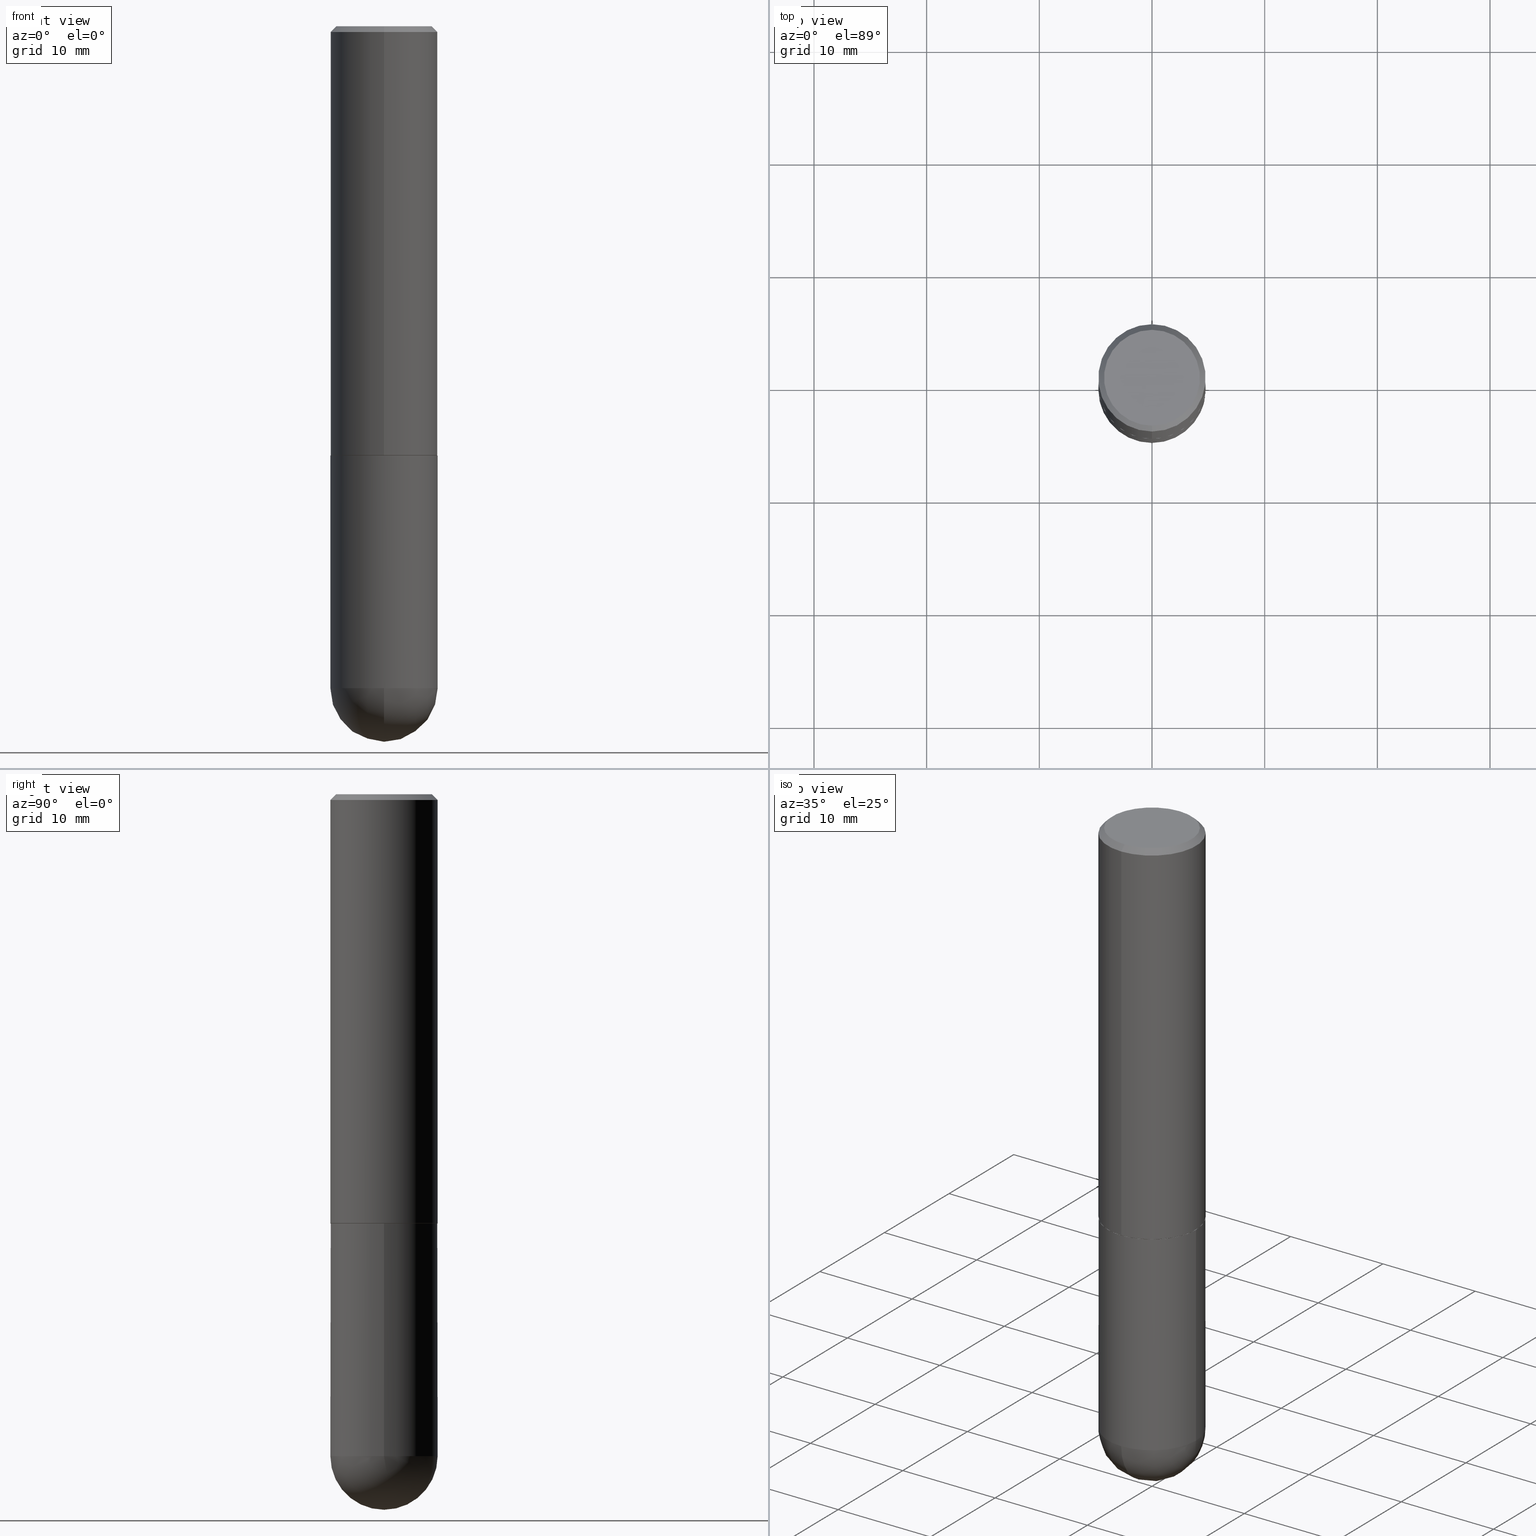
[diagram: canonical four-view strip — front | top / right | iso, engineering-drawing reading convention]
A machine part, canonical four-view strip (front | top / right | iso — engineering-drawing reading convention). The complete STEP part file that produces these views, byte-faithful:
ISO-10303-21;
HEADER;
FILE_DESCRIPTION (( 'STEP AP203' ),
    '1' );
FILE_NAME ('34976.STEP',
    '2024-02-21T18:36:49',
    ( '' ),
    ( '' ),
    'SwSTEP 2.0',
    'SolidWorks 2023',
    '' );
FILE_SCHEMA (( 'CONFIG_CONTROL_DESIGN' ));
ENDSEC;

DATA;
#1 = DIRECTION ( 'NONE',  ( -6.982962677686265922E-15, -1.000000000000000000, 3.493244248574047893E-15 ) ) ;
#2 = ORIENTED_EDGE ( 'NONE', *, *, #16, .F. ) ;
#3 = DIRECTION ( 'NONE',  ( 1.000000000000000000, -6.982962677686266711E-15, 0.000000000000000000 ) ) ;
#4 = ORIENTED_EDGE ( 'NONE', *, *, #126, .F. ) ;
#5 = DIRECTION ( 'NONE',  ( -2.445468806185136597E-29, 3.491481338843145583E-15, 1.000000000000000000 ) ) ;
#6 = CIRCLE ( 'NONE', #172, 0.1875000000000001388 ) ;
#7 = CIRCLE ( 'NONE', #353, 0.1875000000000002776 ) ;
#8 = DIRECTION ( 'NONE',  ( 6.982962677686265922E-15, 1.000000000000000000, -3.493244248574047893E-15 ) ) ;
#9 = COORDINATED_UNIVERSAL_TIME_OFFSET ( 5, 0, .BEHIND. ) ;
#10 = ORIENTED_EDGE ( 'NONE', *, *, #309, .F. ) ;
#11 = COORDINATED_UNIVERSAL_TIME_OFFSET ( 5, 0, .BEHIND. ) ;
#12 = ORIENTED_EDGE ( 'NONE', *, *, #96, .F. ) ;
#13 = DIRECTION ( 'NONE',  ( 1.000000000000000000, 0.000000000000000000, 0.000000000000000000 ) ) ;
#14 = ORIENTED_EDGE ( 'NONE', *, *, #309, .T. ) ;
#15 = APPROVAL_STATUS ( 'not_yet_approved' ) ;
#16 = EDGE_CURVE ( 'NONE', #361, #175, #163, .T. ) ;
#17 = CIRCLE ( 'NONE', #411, 0.1874999999999999722 ) ;
#18 = PRODUCT_DEFINITION_SHAPE ( 'NONE', 'NONE',  #91 ) ;
#19 = PRODUCT_DEFINITION_FORMATION_WITH_SPECIFIED_SOURCE ( 'ANY', '', #211, .NOT_KNOWN. ) ;
#20 = DIRECTION ( 'NONE',  ( -2.444237772899634714E-29, 3.493244248574047893E-15, 1.000000000000000000 ) ) ;
#21 = APPROVAL ( #362, 'UNSPECIFIED' ) ;
#22 = FACE_OUTER_BOUND ( 'NONE', #272, .T. ) ;
#23 = EDGE_LOOP ( 'NONE', ( #241, #116, #380, #4 ) ) ;
#24 = CARTESIAN_POINT ( 'NONE',  ( 4.888475545799278045E-31, -6.986488497148108654E-17, -0.02000000000000003858 ) ) ;
#25 = DIRECTION ( 'NONE',  ( 2.438088387897960049E-29, -3.491481338843145188E-15, -1.000000000000000000 ) ) ;
#26 = EDGE_CURVE ( 'NONE', #228, #175, #351, .T. ) ;
#27 = EDGE_CURVE ( 'NONE', #228, #108, #61, .T. ) ;
#28 = ORIENTED_EDGE ( 'NONE', *, *, #183, .T. ) ;
#29 = PLANE ( 'NONE',  #214 ) ;
#30 = ORIENTED_EDGE ( 'NONE', *, *, #334, .T. ) ;
#31 = DIRECTION ( 'NONE',  ( -2.444237772899634714E-29, 3.493244248574047893E-15, 1.000000000000000000 ) ) ;
#32 = VECTOR ( 'NONE', #193, 39.37007874015748143 ) ;
#33 = CARTESIAN_POINT ( 'NONE',  ( -1.332267629550133812E-15, -0.1875000000000084377, -2.312499999999999556 ) ) ;
#34 = VECTOR ( 'NONE', #287, 39.37007874015748143 ) ;
#35 = ADVANCED_FACE ( 'NONE', ( #262 ), #312, .T. ) ;
#36 = DIRECTION ( 'NONE',  ( -2.445468806185136597E-29, 3.491481338843145583E-15, 1.000000000000000000 ) ) ;
#37 = CARTESIAN_POINT ( 'NONE',  ( 4.888475545799278045E-31, -6.986488497148108654E-17, -0.02000000000000003858 ) ) ;
#38 = PRODUCT_RELATED_PRODUCT_CATEGORY ( 'detail', '', ( #211 ) ) ;
#39 = DIRECTION ( 'NONE',  ( -2.444237772899634714E-29, 3.493244248574047893E-15, 1.000000000000000000 ) ) ;
#40 = CARTESIAN_POINT ( 'NONE',  ( -0.1874999999999999722, -5.323368672619559170E-15, -2.312500000000000000 ) ) ;
#41 = SECURITY_CLASSIFICATION_LEVEL ( 'unclassified' ) ;
#42 = EDGE_CURVE ( 'NONE', #102, #339, #62, .T. ) ;
#43 = DATE_AND_TIME ( #271, #54 ) ;
#44 = VERTEX_POINT ( 'NONE', #33 ) ;
#45 = PERSON_AND_ORGANIZATION_ROLE ( 'creator' ) ;
#46 = CIRCLE ( 'NONE', #243, 0.1864999999999999991 ) ;
#47 = FACE_OUTER_BOUND ( 'NONE', #73, .T. ) ;
#48 = CALENDAR_DATE ( 2024, 21, 2 ) ;
#49 = DIRECTION ( 'NONE',  ( 1.000000000000000000, -6.982962677686266711E-15, 0.000000000000000000 ) ) ;
#50 = VERTEX_POINT ( 'NONE', #92 ) ;
#51 = CARTESIAN_POINT ( 'NONE',  ( 3.666356659349451790E-29, -5.239866372861070262E-15, -1.499999999999999778 ) ) ;
#52 = VERTEX_POINT ( 'NONE', #196 ) ;
#53 = DIRECTION ( 'NONE',  ( -2.444237772899634714E-29, 3.493244248574047893E-15, 1.000000000000000000 ) ) ;
#54 = LOCAL_TIME ( 13, 36, 49.00000000000000000, #11 ) ;
#55 = ORIENTED_EDGE ( 'NONE', *, *, #157, .F. ) ;
#56 = DIRECTION ( 'NONE',  ( -6.982962677686266711E-15, -1.000000000000000000, 3.483106191921935949E-15 ) ) ;
#57 = ORIENTED_EDGE ( 'NONE', *, *, #369, .F. ) ;
#58 = CARTESIAN_POINT ( 'NONE',  ( 5.655146614303128380E-29, -8.074050596074775072E-15, -2.312500000000000000 ) ) ;
#59 = DIRECTION ( 'NONE',  ( 6.982962677686266711E-15, 1.000000000000000000, -2.913971193241876428E-15 ) ) ;
#60 = DIRECTION ( 'NONE',  ( -6.982962677686266711E-15, -1.000000000000000000, 3.493244248574047893E-15 ) ) ;
#61 = CIRCLE ( 'NONE', #293, 0.1674999999999999545 ) ;
#62 = LINE ( 'NONE', #256, #32 ) ;
#63 = AXIS2_PLACEMENT_3D ( 'NONE', #90, #95, #194 ) ;
#64 = APPROVAL ( #210, 'UNSPECIFIED' ) ;
#65 = DIRECTION ( 'NONE',  ( -2.444237772899634153E-29, 3.493244248574047893E-15, 1.000000000000000000 ) ) ;
#66 = PLANE ( 'NONE',  #268 ) ;
#67 = DIRECTION ( 'NONE',  ( 2.444237772899634714E-29, -3.493244248574047893E-15, -1.000000000000000000 ) ) ;
#68 = AXIS2_PLACEMENT_3D ( 'NONE', #212, #145, #146 ) ;
#69 = LOCAL_TIME ( 13, 36, 49.00000000000000000, #176 ) ;
#70 = PERSON_AND_ORGANIZATION ( #295, #94 ) ;
#71 = EDGE_LOOP ( 'NONE', ( #140, #314, #57, #55 ) ) ;
#72 = DATE_TIME_ROLE ( 'classification_date' ) ;
#73 = EDGE_LOOP ( 'NONE', ( #372, #253, #332, #344, #147 ) ) ;
#74 = DATE_TIME_ROLE ( 'creation_date' ) ;
#75 = CARTESIAN_POINT ( 'NONE',  ( 1.325162202192623325E-15, 0.1864999999999947811, -1.500000000000000444 ) ) ;
#76 = CIRCLE ( 'NONE', #368, 0.1875000000000002776 ) ;
#77 = CC_DESIGN_SECURITY_CLASSIFICATION ( #345, ( #19 ) ) ;
#78 = CARTESIAN_POINT ( 'NONE',  ( 3.663912421576552546E-29, -5.236373128612498345E-15, -1.499000000000000110 ) ) ;
#79 = ORIENTED_EDGE ( 'NONE', *, *, #27, .F. ) ;
#80 = CARTESIAN_POINT ( 'NONE',  ( -1.309305502066139312E-15, -0.1875000000000053846, -1.498999999999999444 ) ) ;
#81 = ORIENTED_EDGE ( 'NONE', *, *, #320, .T. ) ;
#82 = CARTESIAN_POINT ( 'NONE',  ( -1.302322539388452115E-15, -0.1865000000000052449, -1.499999999999999334 ) ) ;
#83 = EDGE_LOOP ( 'NONE', ( #405, #395 ) ) ;
#84 = ADVANCED_FACE ( 'NONE', ( #318 ), #132, .T. ) ;
#85 = AXIS2_PLACEMENT_3D ( 'NONE', #280, #219, #338 ) ;
#86 = DIRECTION ( 'NONE',  ( 2.444237772899634714E-29, -3.493244248574047893E-15, -1.000000000000000000 ) ) ;
#87 = DIRECTION ( 'NONE',  ( -2.444237772899634994E-29, 3.493244248574047893E-15, 1.000000000000000000 ) ) ;
#88 = DIRECTION ( 'NONE',  ( -6.982962677686265922E-15, -1.000000000000000000, 2.929595703661408456E-15 ) ) ;
#89 = DIRECTION ( 'NONE',  ( -1.000000000000000000, 6.982962677686266711E-15, -4.883557194083112340E-29 ) ) ;
#90 = CARTESIAN_POINT ( 'NONE',  ( 5.324026836389243254E-29, -8.548232964214825368E-15, -2.312500000000000000 ) ) ;
#91 = PRODUCT_DEFINITION ( 'UNKNOWN', '', #19, #204 ) ;
#92 = CARTESIAN_POINT ( 'NONE',  ( -0.1875000000000000278, -5.323368672619557593E-15, -1.499999999999999778 ) ) ;
#93 = DIRECTION ( 'NONE',  ( 1.000000000000000000, -6.982962677686263555E-15, 0.000000000000000000 ) ) ;
#94 = ORGANIZATION ( 'UNSPECIFIED', 'UNSPECIFIED', '' ) ;
#95 = DIRECTION ( 'NONE',  ( -1.000000000000000000, 6.982962677686266711E-15, -4.883557194083112340E-29 ) ) ;
#96 = EDGE_CURVE ( 'NONE', #175, #339, #17, .T. ) ;
#97 = CARTESIAN_POINT ( 'NONE',  ( 5.324026836389243254E-29, -8.548232964214825368E-15, -2.312500000000000000 ) ) ;
#98 = LENGTH_MEASURE_WITH_UNIT ( LENGTH_MEASURE( 0.02539999999999999897 ), #246 );
#99 = CONICAL_SURFACE ( 'NONE', #336, 0.1864999999999999991, 0.7853981633976190313 ) ;
#100 = CC_DESIGN_APPROVAL ( #64, ( #19 ) ) ;
#101 = EDGE_CURVE ( 'NONE', #285, #245, #257, .T. ) ;
#102 = VERTEX_POINT ( 'NONE', #80 ) ;
#103 = DATE_AND_TIME ( #106, #244 ) ;
#104 = CC_DESIGN_DATE_AND_TIME_ASSIGNMENT ( #103, #72, ( #345 ) ) ;
#105 = ORIENTED_EDGE ( 'NONE', *, *, #96, .T. ) ;
#106 = CALENDAR_DATE ( 2024, 21, 2 ) ;
#107 = CIRCLE ( 'NONE', #85, 0.1874999999999999722 ) ;
#108 = VERTEX_POINT ( 'NONE', #224 ) ;
#109 =( NAMED_UNIT ( * ) SI_UNIT ( $, .STERADIAN. ) SOLID_ANGLE_UNIT ( ) );
#110 = ADVANCED_FACE ( 'NONE', ( #22 ), #277, .T. ) ;
#111 = CARTESIAN_POINT ( 'NONE',  ( -1.286343374582161379E-15, -0.1875000000000000555, -0.01999999999999938632 ) ) ;
#112 = CARTESIAN_POINT ( 'NONE',  ( 1.239475875289312499E-15, 0.1674999999999999545, -5.592120493156243082E-16 ) ) ;
#113 = AXIS2_PLACEMENT_3D ( 'NONE', #265, #123, #60 ) ;
#114 = AXIS2_PLACEMENT_3D ( 'NONE', #58, #313, #350 ) ;
#115 = CARTESIAN_POINT ( 'NONE',  ( 4.888475545799278045E-31, -6.986488497148108654E-17, -0.02000000000000003858 ) ) ;
#116 = ORIENTED_EDGE ( 'NONE', *, *, #316, .T. ) ;
#117 = DIRECTION ( 'NONE',  ( -2.444237772899634714E-29, 3.493244248574047893E-15, 1.000000000000000000 ) ) ;
#118 = EDGE_LOOP ( 'NONE', ( #125, #389, #141, #161 ) ) ;
#119 = ADVANCED_FACE ( 'NONE', ( #366 ), #149, .T. ) ;
#120 = DIRECTION ( 'NONE',  ( 1.000000000000000000, -6.982962677686266711E-15, 4.876176775795935793E-29 ) ) ;
#121 = MANIFOLD_SOLID_BREP ( 'Body-Move/Copy2[2]', #278 ) ;
#122 = VECTOR ( 'NONE', #87, 39.37007874015748143 ) ;
#123 = DIRECTION ( 'NONE',  ( -2.444237772899634714E-29, 3.493244248574047893E-15, 1.000000000000000000 ) ) ;
#124 = LOCAL_TIME ( 13, 36, 49.00000000000000000, #296 ) ;
#125 = ORIENTED_EDGE ( 'NONE', *, *, #202, .T. ) ;
#126 = EDGE_CURVE ( 'NONE', #361, #102, #385, .T. ) ;
#127 = DIRECTION ( 'NONE',  ( -2.444237772899634714E-29, 3.493244248574047893E-15, 1.000000000000000000 ) ) ;
#128 = DIRECTION ( 'NONE',  ( -6.982962677686266711E-15, -1.000000000000000000, 3.493244248574047893E-15 ) ) ;
#129 = CARTESIAN_POINT ( 'NONE',  ( 3.663912421576552546E-29, -5.236373128612498345E-15, -1.499000000000000110 ) ) ;
#130 = DIRECTION ( 'NONE',  ( -2.444237772899634714E-29, 3.493244248574047893E-15, 1.000000000000000000 ) ) ;
#131 = CARTESIAN_POINT ( 'NONE',  ( 0.1875000000000000278, -6.546527510330893185E-15, -1.499999999999999778 ) ) ;
#132 = CONICAL_SURFACE ( 'NONE', #267, 0.1874999999999999722, 0.7853981633974473908 ) ;
#133 = EDGE_CURVE ( 'NONE', #52, #361, #373, .T. ) ;
#134 = FACE_OUTER_BOUND ( 'NONE', #281, .T. ) ;
#135 = DIRECTION ( 'NONE',  ( 0.000000000000000000, 0.000000000000000000, 1.000000000000000000 ) ) ;
#136 = APPLICATION_PROTOCOL_DEFINITION ( 'international standard', 'config_control_design', 1994, #154 ) ;
#137 = AXIS2_PLACEMENT_3D ( 'NONE', #255, #248, #375 ) ;
#138 = ORIENTED_EDGE ( 'NONE', *, *, #126, .T. ) ;
#139 = PERSON_AND_ORGANIZATION ( #295, #94 ) ;
#140 = ORIENTED_EDGE ( 'NONE', *, *, #260, .F. ) ;
#141 = ORIENTED_EDGE ( 'NONE', *, *, #289, .F. ) ;
#142 = APPROVAL_ROLE ( '' ) ;
#143 = CC_DESIGN_DATE_AND_TIME_ASSIGNMENT ( #43, #74, ( #91 ) ) ;
#144 = UNCERTAINTY_MEASURE_WITH_UNIT (LENGTH_MEASURE( 1.000000000000000082E-05 ), #201, 'distance_accuracy_value', 'NONE');
#145 = DIRECTION ( 'NONE',  ( -2.445468806185136597E-29, 3.491481338843145583E-15, 1.000000000000000000 ) ) ;
#146 = DIRECTION ( 'NONE',  ( 1.000000000000000000, -6.982962677686266711E-15, 4.876176775795935793E-29 ) ) ;
#147 = ORIENTED_EDGE ( 'NONE', *, *, #101, .T. ) ;
#148 = AXIS2_PLACEMENT_3D ( 'NONE', #115, #20, #56 ) ;
#149 = CYLINDRICAL_SURFACE ( 'NONE', #68, 0.1874999999999999722 ) ;
#150 = APPROVAL ( #15, 'UNSPECIFIED' ) ;
#151 = ORIENTED_EDGE ( 'NONE', *, *, #16, .T. ) ;
#152 = FACE_OUTER_BOUND ( 'NONE', #23, .T. ) ;
#153 = ORIENTED_EDGE ( 'NONE', *, *, #334, .F. ) ;
#154 = APPLICATION_CONTEXT ( 'configuration controlled 3d designs of mechanical parts and assemblies' ) ;
#155 = CARTESIAN_POINT ( 'NONE',  ( -1.302322539388452115E-15, -0.1865000000000052449, -1.499999999999999334 ) ) ;
#156 = ORIENTED_EDGE ( 'NONE', *, *, #393, .F. ) ;
#157 = EDGE_CURVE ( 'NONE', #245, #341, #107, .T. ) ;
#158 = VECTOR ( 'NONE', #191, 39.37007874015748143 ) ;
#159 = CARTESIAN_POINT ( 'NONE',  ( 1.332267629550207176E-15, 0.1874999999999949207, -1.499000000000000554 ) ) ;
#160 = AXIS2_PLACEMENT_3D ( 'NONE', #234, #36, #93 ) ;
#161 = ORIENTED_EDGE ( 'NONE', *, *, #213, .F. ) ;
#162 = DIRECTION ( 'NONE',  ( -1.000000000000000000, 7.105427357601001070E-15, -4.926315508542082329E-29 ) ) ;
#163 = LINE ( 'NONE', #408, #122 ) ;
#164 = DIRECTION ( 'NONE',  ( -6.982962677686266711E-15, -1.000000000000000000, 2.913971193241878794E-15 ) ) ;
#165 = FACE_OUTER_BOUND ( 'NONE', #71, .T. ) ;
#166 = AXIS2_PLACEMENT_3D ( 'NONE', #181, #406, #120 ) ;
#167 = ADVANCED_FACE ( 'NONE', ( #47 ), #311, .T. ) ;
#168 = APPROVAL_DATE_TIME ( #325, #64 ) ;
#169 = PERSON_AND_ORGANIZATION_ROLE ( 'design_supplier' ) ;
#170 = CC_DESIGN_PERSON_AND_ORGANIZATION_ASSIGNMENT ( #139, #327, ( #211 ) ) ;
#171 = PERSON_AND_ORGANIZATION ( #295, #94 ) ;
#172 = AXIS2_PLACEMENT_3D ( 'NONE', #129, #127, #164 ) ;
#173 = CONICAL_SURFACE ( 'NONE', #187, 0.1874999999999999722, 0.7853981633974473908 ) ;
#174 = APPROVAL_DATE_TIME ( #358, #21 ) ;
#175 = VERTEX_POINT ( 'NONE', #407 ) ;
#176 = COORDINATED_UNIVERSAL_TIME_OFFSET ( 5, 0, .BEHIND. ) ;
#177 = EDGE_CURVE ( 'NONE', #339, #175, #396, .T. ) ;
#178 = CC_DESIGN_PERSON_AND_ORGANIZATION_ASSIGNMENT ( #240, #169, ( #19 ) ) ;
#179 = AXIS2_PLACEMENT_3D ( 'NONE', #354, #65, #1 ) ;
#180 = DIRECTION ( 'NONE',  ( -2.445468806185136597E-29, 3.491481338843145583E-15, 1.000000000000000000 ) ) ;
#181 = CARTESIAN_POINT ( 'NONE',  ( 0.000000000000000000, 0.000000000000000000, 0.000000000000000000 ) ) ;
#182 = ORIENTED_EDGE ( 'NONE', *, *, #26, .T. ) ;
#183 = EDGE_CURVE ( 'NONE', #270, #50, #207, .T. ) ;
#184 = DIRECTION ( 'NONE',  ( -6.982962677686265922E-15, -1.000000000000000000, 2.929595703661408456E-15 ) ) ;
#185 = ORIENTED_EDGE ( 'NONE', *, *, #101, .F. ) ;
#186 = AXIS2_PLACEMENT_3D ( 'NONE', #252, #308, #402 ) ;
#187 = AXIS2_PLACEMENT_3D ( 'NONE', #235, #67, #284 ) ;
#188 = DIRECTION ( 'NONE',  ( -1.000000000000000000, 6.982962677686265922E-15, -4.876176775795935793E-29 ) ) ;
#189 = ORIENTED_EDGE ( 'NONE', *, *, #42, .T. ) ;
#190 = FACE_OUTER_BOUND ( 'NONE', #310, .T. ) ;
#191 = DIRECTION ( 'NONE',  ( 4.937700262164543309E-15, 0.7071067811865444641, -0.7071067811865506814 ) ) ;
#192 = CARTESIAN_POINT ( 'NONE',  ( 0.000000000000000000, 0.000000000000000000, 0.000000000000000000 ) ) ;
#193 = DIRECTION ( 'NONE',  ( -2.444237772899634994E-29, 3.493244248574047893E-15, 1.000000000000000000 ) ) ;
#194 = DIRECTION ( 'NONE',  ( 6.982962677686266711E-15, 1.000000000000000000, -2.913971193241876428E-15 ) ) ;
#195 = CIRCLE ( 'NONE', #215, 0.1875000000000000278 ) ;
#196 = CARTESIAN_POINT ( 'NONE',  ( 1.328714915871424421E-15, 0.1864999999999947811, -1.500000000000000444 ) ) ;
#197 = DIRECTION ( 'NONE',  ( 2.444237772899634153E-29, -3.493244248574047893E-15, -1.000000000000000000 ) ) ;
#198 = ADVANCED_FACE ( 'NONE', ( #304 ), #99, .T. ) ;
#199 = DIRECTION ( 'NONE',  ( -7.105427357601001070E-15, -1.000000000000000000, 0.000000000000000000 ) ) ;
#200 = CARTESIAN_POINT ( 'NONE',  ( 5.790569421510013204E-29, -9.191404651505909607E-15, -2.500000000000000000 ) ) ;
#201 =( CONVERSION_BASED_UNIT ( 'INCH', #98 ) LENGTH_UNIT ( ) NAMED_UNIT ( #374 ) );
#202 = EDGE_CURVE ( 'NONE', #378, #52, #46, .T. ) ;
#203 = DATE_AND_TIME ( #48, #337 ) ;
#204 = DESIGN_CONTEXT ( 'detailed design', #154, 'design' ) ;
#205 = APPLICATION_PROTOCOL_DEFINITION ( 'international standard', 'config_control_design', 1994, #225 ) ;
#206 = EDGE_LOOP ( 'NONE', ( #156, #208, #14, #81, #153 ) ) ;
#207 = CIRCLE ( 'NONE', #307, 0.1875000000000000278 ) ;
#208 = ORIENTED_EDGE ( 'NONE', *, *, #369, .T. ) ;
#209 = MECHANICAL_CONTEXT ( 'NONE', #225, 'mechanical' ) ;
#210 = APPROVAL_STATUS ( 'not_yet_approved' ) ;
#211 = PRODUCT ( '34976', '34976', '', ( #209 ) ) ;
#212 = CARTESIAN_POINT ( 'NONE',  ( 0.000000000000000000, 0.000000000000000000, 0.000000000000000000 ) ) ;
#213 = EDGE_CURVE ( 'NONE', #378, #102, #401, .T. ) ;
#214 = AXIS2_PLACEMENT_3D ( 'NONE', #343, #25, #188 ) ;
#215 = AXIS2_PLACEMENT_3D ( 'NONE', #321, #5, #3 ) ;
#216 = DIRECTION ( 'NONE',  ( -2.444237772899634714E-29, 3.493244248574047893E-15, 1.000000000000000000 ) ) ;
#217 = ORIENTED_EDGE ( 'NONE', *, *, #388, .F. ) ;
#218 = CC_DESIGN_PERSON_AND_ORGANIZATION_ASSIGNMENT ( #171, #45, ( #91 ) ) ;
#219 = DIRECTION ( 'NONE',  ( -2.445468806185136597E-29, 3.491481338843145583E-15, 1.000000000000000000 ) ) ;
#220 = ORIENTED_EDGE ( 'NONE', *, *, #316, .F. ) ;
#221 = DIRECTION ( 'NONE',  ( -4.937700262165390546E-15, -0.7071067811866658115, 0.7071067811864292230 ) ) ;
#222 = VECTOR ( 'NONE', #221, 39.37007874015748143 ) ;
#223 = ADVANCED_FACE ( 'NONE', ( #190 ), #29, .F. ) ;
#224 = CARTESIAN_POINT ( 'NONE',  ( -1.217738394604446442E-15, -0.1674999999999999545, 6.110247739566814046E-16 ) ) ;
#225 = APPLICATION_CONTEXT ( 'configuration controlled 3d designs of mechanical parts and assemblies' ) ;
#226 = CARTESIAN_POINT ( 'NONE',  ( 1.309305502066175205E-15, 0.1874999999999999167, -0.02000000000000069084 ) ) ;
#227 = FACE_OUTER_BOUND ( 'NONE', #230, .T. ) ;
#228 = VERTEX_POINT ( 'NONE', #112 ) ;
#229 = CARTESIAN_POINT ( 'NONE',  ( 5.324026836389243254E-29, -8.548232964214825368E-15, -2.312500000000000000 ) ) ;
#230 = EDGE_LOOP ( 'NONE', ( #288, #151, #412, #376 ) ) ;
#231 = AXIS2_PLACEMENT_3D ( 'NONE', #335, #367, #247 ) ;
#232 = PLANE ( 'NONE',  #179 ) ;
#233 = APPROVAL_PERSON_ORGANIZATION ( #301, #150, #142 ) ;
#234 = CARTESIAN_POINT ( 'NONE',  ( 5.655146614303128380E-29, -8.074050596074775072E-15, -2.312500000000000000 ) ) ;
#235 = CARTESIAN_POINT ( 'NONE',  ( 4.888475545799278045E-31, -6.986488497148108654E-17, -0.02000000000000003858 ) ) ;
#236 = AXIS2_PLACEMENT_3D ( 'NONE', #78, #216, #371 ) ;
#237 = ADVANCED_FACE ( 'NONE', ( #152 ), #315, .T. ) ;
#238 = AXIS2_PLACEMENT_3D ( 'NONE', #333, #135, #13 ) ;
#239 = ORIENTED_EDGE ( 'NONE', *, *, #26, .F. ) ;
#240 = PERSON_AND_ORGANIZATION ( #295, #94 ) ;
#241 = ORIENTED_EDGE ( 'NONE', *, *, #133, .F. ) ;
#242 = PERSON_AND_ORGANIZATION_ROLE ( 'classification_officer' ) ;
#243 = AXIS2_PLACEMENT_3D ( 'NONE', #276, #53, #306 ) ;
#244 = LOCAL_TIME ( 13, 36, 49.00000000000000000, #9 ) ;
#245 = VERTEX_POINT ( 'NONE', #274 ) ;
#246 =( LENGTH_UNIT ( ) NAMED_UNIT ( * ) SI_UNIT ( $, .METRE. ) );
#247 = DIRECTION ( 'NONE',  ( 1.000000000000000000, -6.982962677686263555E-15, 0.000000000000000000 ) ) ;
#248 = DIRECTION ( 'NONE',  ( -2.444237772899634714E-29, 3.493244248574047893E-15, 1.000000000000000000 ) ) ;
#249 = CLOSED_SHELL ( 'NONE', ( #167, #342, #35, #223, #119 ) ) ;
#250 = AXIS2_PLACEMENT_3D ( 'NONE', #319, #39, #88 ) ;
#251 = DIRECTION ( 'NONE',  ( -6.982962677686266711E-15, -1.000000000000000000, 3.483106191921935949E-15 ) ) ;
#252 = CARTESIAN_POINT ( 'NONE',  ( 0.000000000000000000, 0.000000000000000000, 0.000000000000000000 ) ) ;
#253 = ORIENTED_EDGE ( 'NONE', *, *, #393, .T. ) ;
#254 = EDGE_CURVE ( 'NONE', #108, #339, #399, .T. ) ;
#255 = CARTESIAN_POINT ( 'NONE',  ( 3.666356659349451790E-29, -5.239866372861070262E-15, -1.499999999999999778 ) ) ;
#256 = CARTESIAN_POINT ( 'NONE',  ( -1.309305502066175205E-15, -0.1875000000000000555, 6.549832966076341771E-16 ) ) ;
#257 = CIRCLE ( 'NONE', #231, 0.1874999999999999722 ) ;
#258 = CC_DESIGN_APPROVAL ( #150, ( #345 ) ) ;
#259 = ORIENTED_EDGE ( 'NONE', *, *, #202, .F. ) ;
#260 = EDGE_CURVE ( 'NONE', #264, #245, #76, .T. ) ;
#261 = LINE ( 'NONE', #266, #324 ) ;
#262 = FACE_OUTER_BOUND ( 'NONE', #349, .T. ) ;
#263 = SPHERICAL_SURFACE ( 'NONE', #63, 0.1875000000000002776 ) ;
#264 = VERTEX_POINT ( 'NONE', #200 ) ;
#265 = CARTESIAN_POINT ( 'NONE',  ( -6.332130934225978108E-46, 9.049725117766187729E-32, 2.590636232052857901E-17 ) ) ;
#266 = CARTESIAN_POINT ( 'NONE',  ( 0.1874999999999999722, -1.309305502066174811E-15, 9.142831454617378210E-30 ) ) ;
#267 = AXIS2_PLACEMENT_3D ( 'NONE', #37, #86, #346 ) ;
#268 = AXIS2_PLACEMENT_3D ( 'NONE', #355, #197, #8 ) ;
#269 = APPROVAL_ROLE ( '' ) ;
#270 = VERTEX_POINT ( 'NONE', #131 ) ;
#271 = CALENDAR_DATE ( 2024, 21, 2 ) ;
#272 = EDGE_LOOP ( 'NONE', ( #2, #138, #189, #12 ) ) ;
#273 = COORDINATED_UNIVERSAL_TIME_OFFSET ( 5, 0, .BEHIND. ) ;
#274 = CARTESIAN_POINT ( 'NONE',  ( 1.309305502066230623E-15, 0.1874999999999918399, -2.312500000000000444 ) ) ;
#275 = EDGE_CURVE ( 'NONE', #108, #228, #297, .T. ) ;
#276 = CARTESIAN_POINT ( 'NONE',  ( 3.666356659349451790E-29, -5.239866372861070262E-15, -1.499999999999999778 ) ) ;
#277 = CYLINDRICAL_SURFACE ( 'NONE', #186, 0.1875000000000000555 ) ;
#278 = CLOSED_SHELL ( 'NONE', ( #198, #365, #84, #409, #110, #237, #394, #403 ) ) ;
#279 = CIRCLE ( 'NONE', #160, 0.1874999999999999722 ) ;
#280 = CARTESIAN_POINT ( 'NONE',  ( 5.655146614303128380E-29, -8.074050596074775072E-15, -2.312500000000000000 ) ) ;
#281 = EDGE_LOOP ( 'NONE', ( #329, #79, #182, #105 ) ) ;
#282 = DIRECTION ( 'NONE',  ( 5.024295867788919882E-15, 0.7071067811866706965, 0.7071067811864243380 ) ) ;
#283 = ORIENTED_EDGE ( 'NONE', *, *, #254, .T. ) ;
#284 = DIRECTION ( 'NONE',  ( 6.982962677686266711E-15, 1.000000000000000000, -3.483106191921935949E-15 ) ) ;
#285 = VERTEX_POINT ( 'NONE', #410 ) ;
#286 = APPROVAL_PERSON_ORGANIZATION ( #364, #64, #269 ) ;
#287 = DIRECTION ( 'NONE',  ( -2.445468806185136877E-29, 3.491481338843145188E-15, 1.000000000000000000 ) ) ;
#288 = ORIENTED_EDGE ( 'NONE', *, *, #289, .T. ) ;
#289 = EDGE_CURVE ( 'NONE', #102, #361, #6, .T. ) ;
#290 = CYLINDRICAL_SURFACE ( 'NONE', #302, 0.1875000000000000555 ) ;
#291 = CARTESIAN_POINT ( 'NONE',  ( -6.332130934225978108E-46, 9.049725117766187729E-32, 2.590636232052857901E-17 ) ) ;
#292 = DIRECTION ( 'NONE',  ( -2.445468806185136877E-29, 3.491481338843145188E-15, 1.000000000000000000 ) ) ;
#293 = AXIS2_PLACEMENT_3D ( 'NONE', #291, #130, #128 ) ;
#294 = CARTESIAN_POINT ( 'NONE',  ( -0.1874999999999999722, 1.332267629550187651E-15, -9.223003294227946589E-30 ) ) ;
#295 = PERSON ( 'UNSPECIFIED', 'UNSPECIFIED', 'UNSPECIFIED', ('UNSPECIFIED'), ('UNSPECIFIED'), ('UNSPECIFIED') ) ;
#296 = COORDINATED_UNIVERSAL_TIME_OFFSET ( 5, 0, .BEHIND. ) ;
#297 = CIRCLE ( 'NONE', #113, 0.1674999999999999545 ) ;
#298 = CIRCLE ( 'NONE', #114, 0.1874999999999999722 ) ;
#299 = EDGE_LOOP ( 'NONE', ( #391, #283, #370, #239 ) ) ;
#300 =( NAMED_UNIT ( * ) PLANE_ANGLE_UNIT ( ) SI_UNIT ( $, .RADIAN. ) );
#301 = PERSON_AND_ORGANIZATION ( #295, #94 ) ;
#302 = AXIS2_PLACEMENT_3D ( 'NONE', #192, #31, #317 ) ;
#303 = CARTESIAN_POINT ( 'NONE',  ( 3.668203209277704335E-29, -5.237222008264717388E-15, -1.499999999999999778 ) ) ;
#304 = FACE_OUTER_BOUND ( 'NONE', #118, .T. ) ;
#305 = ORIENTED_EDGE ( 'NONE', *, *, #260, .T. ) ;
#306 = DIRECTION ( 'NONE',  ( -6.982962677686265922E-15, -1.000000000000000000, 2.929595703661408456E-15 ) ) ;
#307 = AXIS2_PLACEMENT_3D ( 'NONE', #303, #180, #49 ) ;
#308 = DIRECTION ( 'NONE',  ( -2.444237772899634714E-29, 3.493244248574047893E-15, 1.000000000000000000 ) ) ;
#309 = EDGE_CURVE ( 'NONE', #44, #285, #298, .T. ) ;
#310 = EDGE_LOOP ( 'NONE', ( #28, #30 ) ) ;
#311 = CYLINDRICAL_SURFACE ( 'NONE', #166, 0.1874999999999999722 ) ;
#312 = SPHERICAL_SURFACE ( 'NONE', #323, 0.1875000000000002776 ) ;
#313 = DIRECTION ( 'NONE',  ( -2.445468806185136597E-29, 3.491481338843145583E-15, 1.000000000000000000 ) ) ;
#314 = ORIENTED_EDGE ( 'NONE', *, *, #388, .T. ) ;
#315 = CONICAL_SURFACE ( 'NONE', #137, 0.1864999999999999991, 0.7853981633976190313 ) ;
#316 = EDGE_CURVE ( 'NONE', #52, #378, #386, .T. ) ;
#317 = DIRECTION ( 'NONE',  ( -6.982962677686265922E-15, -1.000000000000000000, 3.493244248574047893E-15 ) ) ;
#318 = FACE_OUTER_BOUND ( 'NONE', #299, .T. ) ;
#319 = CARTESIAN_POINT ( 'NONE',  ( 3.666356659349451790E-29, -5.239866372861070262E-15, -1.499999999999999778 ) ) ;
#320 = EDGE_CURVE ( 'NONE', #285, #270, #261, .T. ) ;
#321 = CARTESIAN_POINT ( 'NONE',  ( 3.668203209277704335E-29, -5.237222008264717388E-15, -1.499999999999999778 ) ) ;
#322 = CC_DESIGN_PERSON_AND_ORGANIZATION_ASSIGNMENT ( #392, #384, ( #19 ) ) ;
#323 = AXIS2_PLACEMENT_3D ( 'NONE', #347, #89, #59 ) ;
#324 = VECTOR ( 'NONE', #292, 39.37007874015748143 ) ;
#325 = DATE_AND_TIME ( #390, #69 ) ;
#326 = SHAPE_DEFINITION_REPRESENTATION ( #18, #400 ) ;
#327 = PERSON_AND_ORGANIZATION_ROLE ( 'design_owner' ) ;
#328 = CC_DESIGN_PERSON_AND_ORGANIZATION_ASSIGNMENT ( #387, #242, ( #345 ) ) ;
#329 = ORIENTED_EDGE ( 'NONE', *, *, #254, .F. ) ;
#330 = APPROVAL_ROLE ( '' ) ;
#331 = VECTOR ( 'NONE', #282, 39.37007874015748143 ) ;
#332 = ORIENTED_EDGE ( 'NONE', *, *, #183, .F. ) ;
#333 = CARTESIAN_POINT ( 'NONE',  ( 0.000000000000000000, 0.000000000000000000, 0.000000000000000000 ) ) ;
#334 = EDGE_CURVE ( 'NONE', #50, #270, #195, .T. ) ;
#335 = CARTESIAN_POINT ( 'NONE',  ( 5.655146614303128380E-29, -8.074050596074775072E-15, -2.312500000000000000 ) ) ;
#336 = AXIS2_PLACEMENT_3D ( 'NONE', #51, #117, #184 ) ;
#337 = LOCAL_TIME ( 13, 36, 49.00000000000000000, #273 ) ;
#338 = DIRECTION ( 'NONE',  ( 1.000000000000000000, -6.982962677686263555E-15, 0.000000000000000000 ) ) ;
#339 = VERTEX_POINT ( 'NONE', #382 ) ;
#340 = DIRECTION ( 'NONE',  ( -2.444237772899634714E-29, 3.493244248574047893E-15, 1.000000000000000000 ) ) ;
#341 = VERTEX_POINT ( 'NONE', #40 ) ;
#342 = ADVANCED_FACE ( 'NONE', ( #165 ), #263, .T. ) ;
#343 = CARTESIAN_POINT ( 'NONE',  ( 1.309305502066211690E-15, 0.1874999999999947820, -1.500000000000000444 ) ) ;
#344 = ORIENTED_EDGE ( 'NONE', *, *, #320, .F. ) ;
#345 = SECURITY_CLASSIFICATION ( '', '', #41 ) ;
#346 = DIRECTION ( 'NONE',  ( 6.982962677686266711E-15, 1.000000000000000000, -3.483106191921935949E-15 ) ) ;
#347 = CARTESIAN_POINT ( 'NONE',  ( 5.324026836389243254E-29, -8.548232964214825368E-15, -2.312500000000000000 ) ) ;
#348 = DIRECTION ( 'NONE',  ( 6.982962677686266711E-15, 1.000000000000000000, 0.000000000000000000 ) ) ;
#349 = EDGE_LOOP ( 'NONE', ( #217, #305, #185, #10 ) ) ;
#350 = DIRECTION ( 'NONE',  ( 1.000000000000000000, -6.982962677686263555E-15, 0.000000000000000000 ) ) ;
#351 = LINE ( 'NONE', #226, #158 ) ;
#352 = VECTOR ( 'NONE', #377, 39.37007874015748143 ) ;
#353 = AXIS2_PLACEMENT_3D ( 'NONE', #97, #162, #199 ) ;
#354 = CARTESIAN_POINT ( 'NONE',  ( 3.666356659349451790E-29, -5.239866372861070262E-15, -1.499999999999999778 ) ) ;
#355 = CARTESIAN_POINT ( 'NONE',  ( 1.169646248512449398E-15, 0.1674999999999999545, -5.721652304758885823E-16 ) ) ;
#356 = FACE_OUTER_BOUND ( 'NONE', #363, .T. ) ;
#357 = APPROVAL_PERSON_ORGANIZATION ( #70, #21, #330 ) ;
#358 = DATE_AND_TIME ( #360, #124 ) ;
#359 = APPROVAL_DATE_TIME ( #203, #150 ) ;
#360 = CALENDAR_DATE ( 2024, 21, 2 ) ;
#361 = VERTEX_POINT ( 'NONE', #159 ) ;
#362 = APPROVAL_STATUS ( 'not_yet_approved' ) ;
#363 = EDGE_LOOP ( 'NONE', ( #259, #220 ) ) ;
#364 = PERSON_AND_ORGANIZATION ( #295, #94 ) ;
#365 = ADVANCED_FACE ( 'NONE', ( #227 ), #290, .T. ) ;
#366 = FACE_OUTER_BOUND ( 'NONE', #206, .T. ) ;
#367 = DIRECTION ( 'NONE',  ( -2.445468806185136597E-29, 3.491481338843145583E-15, 1.000000000000000000 ) ) ;
#368 = AXIS2_PLACEMENT_3D ( 'NONE', #229, #379, #348 ) ;
#369 = EDGE_CURVE ( 'NONE', #341, #44, #279, .T. ) ;
#370 = ORIENTED_EDGE ( 'NONE', *, *, #177, .T. ) ;
#371 = DIRECTION ( 'NONE',  ( -6.982962677686266711E-15, -1.000000000000000000, 2.913971193241878794E-15 ) ) ;
#372 = ORIENTED_EDGE ( 'NONE', *, *, #157, .T. ) ;
#373 = LINE ( 'NONE', #75, #331 ) ;
#374 = DIMENSIONAL_EXPONENTS ( 1.000000000000000000, 0.000000000000000000, 0.000000000000000000, 0.000000000000000000, 0.000000000000000000, 0.000000000000000000, 0.000000000000000000 ) ;
#375 = DIRECTION ( 'NONE',  ( -6.982962677686265922E-15, -1.000000000000000000, 2.929595703661408456E-15 ) ) ;
#376 = ORIENTED_EDGE ( 'NONE', *, *, #42, .F. ) ;
#377 = DIRECTION ( 'NONE',  ( -4.851104656540959542E-15, -0.7071067811865493491, -0.7071067811865457964 ) ) ;
#378 = VERTEX_POINT ( 'NONE', #155 ) ;
#379 = DIRECTION ( 'NONE',  ( 1.000000000000000000, -6.982962677686265922E-15, 4.883557194083112340E-29 ) ) ;
#380 = ORIENTED_EDGE ( 'NONE', *, *, #213, .T. ) ;
#381 = LINE ( 'NONE', #294, #34 ) ;
#382 = CARTESIAN_POINT ( 'NONE',  ( -1.286343374582161379E-15, -0.1875000000000000555, -0.01999999999999938632 ) ) ;
#383 = FACE_OUTER_BOUND ( 'NONE', #83, .T. ) ;
#384 = PERSON_AND_ORGANIZATION_ROLE ( 'creator' ) ;
#385 = CIRCLE ( 'NONE', #236, 0.1875000000000001388 ) ;
#386 = CIRCLE ( 'NONE', #250, 0.1864999999999999991 ) ;
#387 = PERSON_AND_ORGANIZATION ( #295, #94 ) ;
#388 = EDGE_CURVE ( 'NONE', #264, #44, #7, .T. ) ;
#389 = ORIENTED_EDGE ( 'NONE', *, *, #133, .T. ) ;
#390 = CALENDAR_DATE ( 2024, 21, 2 ) ;
#391 = ORIENTED_EDGE ( 'NONE', *, *, #275, .F. ) ;
#392 = PERSON_AND_ORGANIZATION ( #295, #94 ) ;
#393 = EDGE_CURVE ( 'NONE', #341, #50, #381, .T. ) ;
#394 = ADVANCED_FACE ( 'NONE', ( #356 ), #232, .F. ) ;
#395 = ORIENTED_EDGE ( 'NONE', *, *, #275, .T. ) ;
#396 = CIRCLE ( 'NONE', #148, 0.1874999999999999722 ) ;
#397 =( GEOMETRIC_REPRESENTATION_CONTEXT ( 3 ) GLOBAL_UNCERTAINTY_ASSIGNED_CONTEXT ( ( #144 ) ) GLOBAL_UNIT_ASSIGNED_CONTEXT ( ( #201, #300, #109 ) ) REPRESENTATION_CONTEXT ( 'NONE', 'WORKASPACE' ) );
#398 = MANIFOLD_SOLID_BREP ( 'Body-Move/Copy2[1]', #249 ) ;
#399 = LINE ( 'NONE', #111, #352 ) ;
#400 = ADVANCED_BREP_SHAPE_REPRESENTATION ( '34976', ( #398, #121, #238 ), #397 ) ;
#401 = LINE ( 'NONE', #82, #222 ) ;
#402 = DIRECTION ( 'NONE',  ( -6.982962677686265922E-15, -1.000000000000000000, 3.493244248574047893E-15 ) ) ;
#403 = ADVANCED_FACE ( 'NONE', ( #383 ), #66, .F. ) ;
#404 = CC_DESIGN_APPROVAL ( #21, ( #91 ) ) ;
#405 = ORIENTED_EDGE ( 'NONE', *, *, #27, .T. ) ;
#406 = DIRECTION ( 'NONE',  ( -2.445468806185136597E-29, 3.491481338843145583E-15, 1.000000000000000000 ) ) ;
#407 = CARTESIAN_POINT ( 'NONE',  ( 1.309305502066175205E-15, 0.1874999999999999167, -0.02000000000000069084 ) ) ;
#408 = CARTESIAN_POINT ( 'NONE',  ( 1.332267629550188046E-15, 0.1875000000000000555, -6.549832966076341771E-16 ) ) ;
#409 = ADVANCED_FACE ( 'NONE', ( #134 ), #173, .T. ) ;
#410 = CARTESIAN_POINT ( 'NONE',  ( 0.1874999999999999722, -7.964941804235921238E-15, -2.312500000000000000 ) ) ;
#411 = AXIS2_PLACEMENT_3D ( 'NONE', #24, #340, #251 ) ;
#412 = ORIENTED_EDGE ( 'NONE', *, *, #177, .F. ) ;
ENDSEC;
END-ISO-10303-21;
